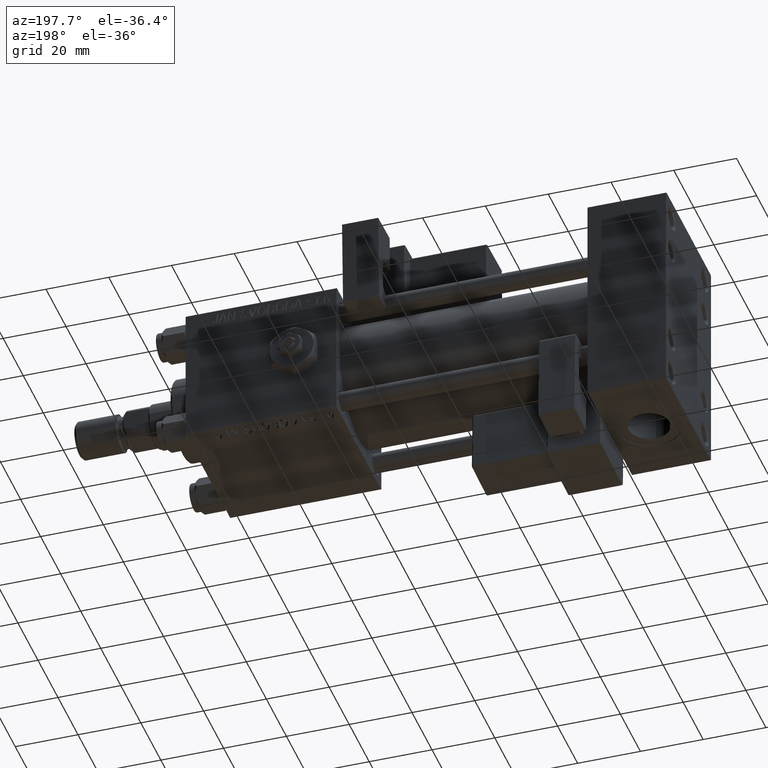
[diagram: clean part render]
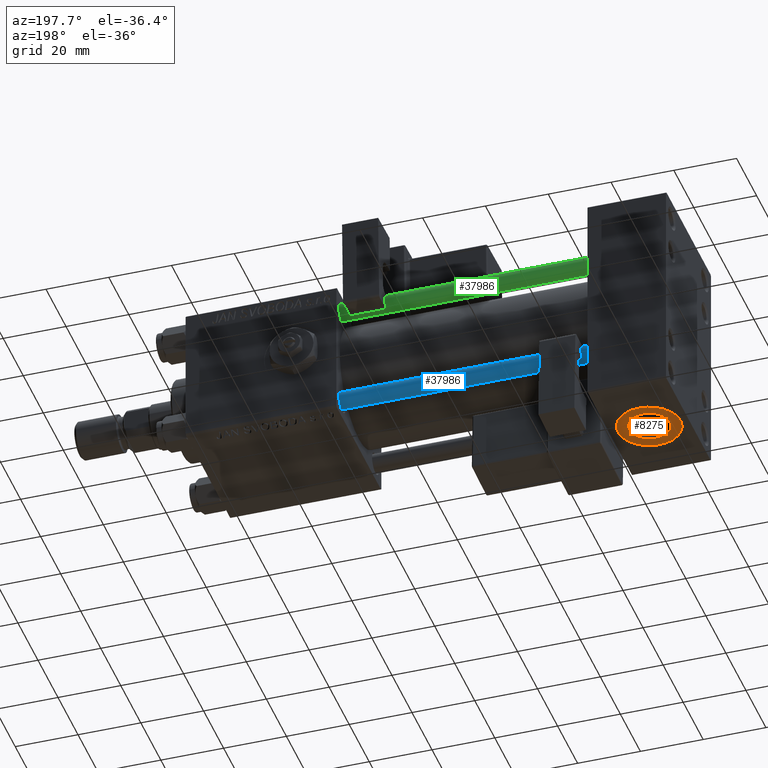
[diagram: same view with three faces highlighted in distinct colors, each labeled with its STEP entity id]
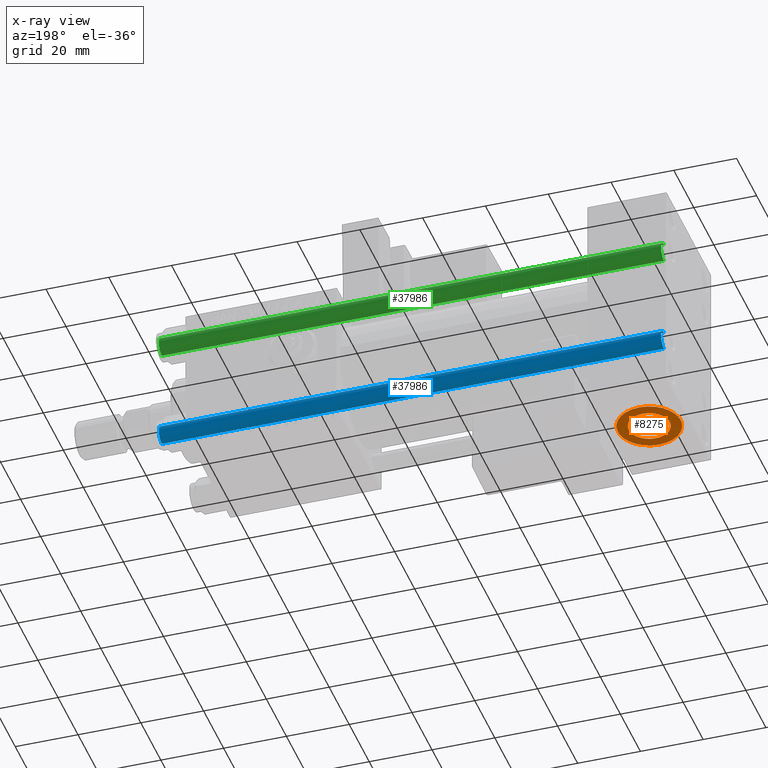
[diagram: x-ray of the same camera — body ghosted, the three highlighted faces saturated]
A machine part, auxiliary view with three faces highlighted in distinct colors.
The next image is the same camera in x-ray (body ghosted, the three faces saturated) — at least one of them is partly hidden behind the body in this view.
Their STEP definitions:

[orange] entity #8275 — the highlighted planar face has unit normal (0, -0, -1).
#928 = DIRECTION ( 'NONE',  ( 0.000000000000000000, 1.000000000000000000, -1.734723475976806848E-16 ) ) ;
#1520 = DIRECTION ( 'NONE',  ( 0.000000000000000000, -1.734723475976806848E-16, -1.000000000000000000 ) ) ;
#3726 = DIRECTION ( 'NONE',  ( 0.000000000000000000, -1.734723475976806848E-16, -1.000000000000000000 ) ) ;
#8275 = ADVANCED_FACE ( 'NONE', ( #21011, #33391 ), #16884, .T. ) ;
#9496 = DIRECTION ( 'NONE',  ( 0.000000000000000000, 1.000000000000000000, 0.000000000000000000 ) ) ;
#9707 = VERTEX_POINT ( 'NONE', #22466 ) ;
#10009 = AXIS2_PLACEMENT_3D ( 'NONE', #28236, #3726, #32618 ) ;
#10683 = ORIENTED_EDGE ( 'NONE', *, *, #17021, .T. ) ;
#12763 = DIRECTION ( 'NONE',  ( 0.000000000000000000, -1.734723475976806848E-16, -1.000000000000000000 ) ) ;
#14124 = CIRCLE ( 'NONE', #34335, 6.580000000000000071 ) ;
#14407 = CARTESIAN_POINT ( 'NONE',  ( 12.50000000000000178, 3.793502239365228285E-15, -34.80000000000000426 ) ) ;
#14433 = EDGE_CURVE ( 'NONE', #16945, #25189, #14124, .T. ) ;
#16884 = PLANE ( 'NONE',  #52733 ) ;
#16945 = VERTEX_POINT ( 'NONE', #17987 ) ;
#17021 = EDGE_CURVE ( 'NONE', #9707, #17053, #26573, .T. ) ;
#17053 = VERTEX_POINT ( 'NONE', #36411 ) ;
#17883 = AXIS2_PLACEMENT_3D ( 'NONE', #24309, #24041, #27901 ) ;
#17987 = CARTESIAN_POINT ( 'NONE',  ( 12.50000000000000178, -6.579999999999997407, -34.80000000000000426 ) ) ;
#20149 = EDGE_CURVE ( 'NONE', #17053, #9707, #46889, .T. ) ;
#20338 = EDGE_CURVE ( 'NONE', #25189, #16945, #53944, .T. ) ;
#20470 = ORIENTED_EDGE ( 'NONE', *, *, #20338, .F. ) ;
#21011 = FACE_BOUND ( 'NONE', #41882, .T. ) ;
#21036 = EDGE_LOOP ( 'NONE', ( #23927, #10683 ) ) ;
#22466 = CARTESIAN_POINT ( 'NONE',  ( 12.50000000000000355, -9.999999999999998224, -34.80000000000000426 ) ) ;
#23927 = ORIENTED_EDGE ( 'NONE', *, *, #20149, .T. ) ;
#24041 = DIRECTION ( 'NONE',  ( 0.000000000000000000, -1.734723475976806848E-16, -1.000000000000000000 ) ) ;
#24309 = CARTESIAN_POINT ( 'NONE',  ( 12.50000000000000178, 3.793502239365228285E-15, -34.80000000000000426 ) ) ;
#25189 = VERTEX_POINT ( 'NONE', #31972 ) ;
#26573 = CIRCLE ( 'NONE', #45903, 10.00000000000000178 ) ;
#27901 = DIRECTION ( 'NONE',  ( 0.000000000000000000, 1.000000000000000000, 0.000000000000000000 ) ) ;
#28236 = CARTESIAN_POINT ( 'NONE',  ( 12.50000000000000178, 3.793502239365228285E-15, -34.80000000000000426 ) ) ;
#31972 = CARTESIAN_POINT ( 'NONE',  ( 12.50000000000000178, 6.580000000000003624, -34.80000000000000426 ) ) ;
#32618 = DIRECTION ( 'NONE',  ( 0.000000000000000000, 1.000000000000000000, 0.000000000000000000 ) ) ;
#33391 = FACE_OUTER_BOUND ( 'NONE', #21036, .T. ) ;
#34335 = AXIS2_PLACEMENT_3D ( 'NONE', #51628, #1520, #9496 ) ;
#36411 = CARTESIAN_POINT ( 'NONE',  ( 12.50000000000000178, 10.00000000000000533, -34.80000000000000426 ) ) ;
#41882 = EDGE_LOOP ( 'NONE', ( #20470, #49678 ) ) ;
#45903 = AXIS2_PLACEMENT_3D ( 'NONE', #14407, #48010, #53222 ) ;
#46889 = CIRCLE ( 'NONE', #10009, 10.00000000000000178 ) ;
#48010 = DIRECTION ( 'NONE',  ( 0.000000000000000000, -1.734723475976806848E-16, -1.000000000000000000 ) ) ;
#49678 = ORIENTED_EDGE ( 'NONE', *, *, #14433, .F. ) ;
#50494 = CARTESIAN_POINT ( 'NONE',  ( 12.50000000000000178, 3.793502239365228285E-15, -34.80000000000000426 ) ) ;
#51628 = CARTESIAN_POINT ( 'NONE',  ( 12.50000000000000178, 3.793502239365228285E-15, -34.80000000000000426 ) ) ;
#52733 = AXIS2_PLACEMENT_3D ( 'NONE', #50494, #12763, #928 ) ;
#53222 = DIRECTION ( 'NONE',  ( 0.000000000000000000, 1.000000000000000000, 0.000000000000000000 ) ) ;
#53944 = CIRCLE ( 'NONE', #17883, 6.580000000000000071 ) ;

[blue] entity #37986 — the highlighted cylindrical surface (edge-blend (fillet) strip) has radius 3 mm, axis along (-1, 0, 0).
#4985 = DIRECTION ( 'NONE',  ( 1.000000000000000000, 0.000000000000000000, 0.000000000000000000 ) ) ;
#5582 = VERTEX_POINT ( 'NONE', #43328 ) ;
#9379 = EDGE_CURVE ( 'NONE', #5582, #28398, #52409, .T. ) ;
#13179 = VECTOR ( 'NONE', #48273, 1000.000000000000000 ) ;
#13778 = CARTESIAN_POINT ( 'NONE',  ( 0.000000000000000000, 0.000000000000000000, 0.5000000000000281997 ) ) ;
#14683 = CARTESIAN_POINT ( 'NONE',  ( 3.000000000000000444, 3.673940397442060361E-16, 161.0000000000000000 ) ) ;
#15091 = CIRCLE ( 'NONE', #19490, 3.000000000000000444 ) ;
#15520 = DIRECTION ( 'NONE',  ( -0.000000000000000000, -0.000000000000000000, -1.000000000000000000 ) ) ;
#16814 = ORIENTED_EDGE ( 'NONE', *, *, #9379, .F. ) ;
#19490 = AXIS2_PLACEMENT_3D ( 'NONE', #27562, #20378, #23710 ) ;
#19966 = DIRECTION ( 'NONE',  ( -0.000000000000000000, -0.000000000000000000, -1.000000000000000000 ) ) ;
#20231 = CARTESIAN_POINT ( 'NONE',  ( -3.000000000000000444, 0.000000000000000000, 161.0000000000000000 ) ) ;
#20378 = DIRECTION ( 'NONE',  ( 0.000000000000000000, 0.000000000000000000, -1.000000000000000000 ) ) ;
#23710 = DIRECTION ( 'NONE',  ( 1.000000000000000000, 0.000000000000000000, 0.000000000000000000 ) ) ;
#24103 = LINE ( 'NONE', #20231, #24638 ) ;
#24638 = VECTOR ( 'NONE', #19966, 1000.000000000000000 ) ;
#25139 = CARTESIAN_POINT ( 'NONE',  ( -3.000000000000000444, 0.000000000000000000, 160.4999999999999716 ) ) ;
#25305 = AXIS2_PLACEMENT_3D ( 'NONE', #13778, #43787, #4985 ) ;
#27562 = CARTESIAN_POINT ( 'NONE',  ( 0.000000000000000000, 0.000000000000000000, 160.4999999999999716 ) ) ;
#28398 = VERTEX_POINT ( 'NONE', #54041 ) ;
#30390 = ORIENTED_EDGE ( 'NONE', *, *, #36003, .T. ) ;
#31762 = CYLINDRICAL_SURFACE ( 'NONE', #44726, 3.000000000000000444 ) ;
#32916 = VERTEX_POINT ( 'NONE', #25139 ) ;
#36003 = EDGE_CURVE ( 'NONE', #38288, #28398, #43797, .T. ) ;
#36442 = FACE_OUTER_BOUND ( 'NONE', #53129, .T. ) ;
#37986 = ADVANCED_FACE ( 'NONE', ( #36442 ), #31762, .T. ) ;
#38219 = ORIENTED_EDGE ( 'NONE', *, *, #47452, .T. ) ;
#38288 = VERTEX_POINT ( 'NONE', #44641 ) ;
#43328 = CARTESIAN_POINT ( 'NONE',  ( 3.000000000000000444, 3.673940397442060361E-16, 160.4999999999999716 ) ) ;
#43787 = DIRECTION ( 'NONE',  ( -0.000000000000000000, -0.000000000000000000, 1.000000000000000000 ) ) ;
#43797 = CIRCLE ( 'NONE', #25305, 3.000000000000000444 ) ;
#44172 = ORIENTED_EDGE ( 'NONE', *, *, #45139, .T. ) ;
#44641 = CARTESIAN_POINT ( 'NONE',  ( -3.000000000000000444, 0.000000000000000000, 0.5000000000000281997 ) ) ;
#44726 = AXIS2_PLACEMENT_3D ( 'NONE', #53248, #15520, #49113 ) ;
#45139 = EDGE_CURVE ( 'NONE', #32916, #38288, #24103, .T. ) ;
#47452 = EDGE_CURVE ( 'NONE', #5582, #32916, #15091, .T. ) ;
#48273 = DIRECTION ( 'NONE',  ( -0.000000000000000000, -0.000000000000000000, -1.000000000000000000 ) ) ;
#49113 = DIRECTION ( 'NONE',  ( -1.000000000000000000, 0.000000000000000000, 0.000000000000000000 ) ) ;
#52409 = LINE ( 'NONE', #14683, #13179 ) ;
#53129 = EDGE_LOOP ( 'NONE', ( #16814, #38219, #44172, #30390 ) ) ;
#53248 = CARTESIAN_POINT ( 'NONE',  ( 0.000000000000000000, 0.000000000000000000, 161.0000000000000000 ) ) ;
#54041 = CARTESIAN_POINT ( 'NONE',  ( 3.000000000000000444, 3.673940397442060361E-16, 0.5000000000000281997 ) ) ;

[green] entity #37986 — the highlighted cylindrical surface (edge-blend (fillet) strip) has radius 3 mm, axis along (1, 0, 0).
#4985 = DIRECTION ( 'NONE',  ( 1.000000000000000000, 0.000000000000000000, 0.000000000000000000 ) ) ;
#5582 = VERTEX_POINT ( 'NONE', #43328 ) ;
#9379 = EDGE_CURVE ( 'NONE', #5582, #28398, #52409, .T. ) ;
#13179 = VECTOR ( 'NONE', #48273, 1000.000000000000000 ) ;
#13778 = CARTESIAN_POINT ( 'NONE',  ( 0.000000000000000000, 0.000000000000000000, 0.5000000000000281997 ) ) ;
#14683 = CARTESIAN_POINT ( 'NONE',  ( 3.000000000000000444, 3.673940397442060361E-16, 161.0000000000000000 ) ) ;
#15091 = CIRCLE ( 'NONE', #19490, 3.000000000000000444 ) ;
#15520 = DIRECTION ( 'NONE',  ( -0.000000000000000000, -0.000000000000000000, -1.000000000000000000 ) ) ;
#16814 = ORIENTED_EDGE ( 'NONE', *, *, #9379, .F. ) ;
#19490 = AXIS2_PLACEMENT_3D ( 'NONE', #27562, #20378, #23710 ) ;
#19966 = DIRECTION ( 'NONE',  ( -0.000000000000000000, -0.000000000000000000, -1.000000000000000000 ) ) ;
#20231 = CARTESIAN_POINT ( 'NONE',  ( -3.000000000000000444, 0.000000000000000000, 161.0000000000000000 ) ) ;
#20378 = DIRECTION ( 'NONE',  ( 0.000000000000000000, 0.000000000000000000, -1.000000000000000000 ) ) ;
#23710 = DIRECTION ( 'NONE',  ( 1.000000000000000000, 0.000000000000000000, 0.000000000000000000 ) ) ;
#24103 = LINE ( 'NONE', #20231, #24638 ) ;
#24638 = VECTOR ( 'NONE', #19966, 1000.000000000000000 ) ;
#25139 = CARTESIAN_POINT ( 'NONE',  ( -3.000000000000000444, 0.000000000000000000, 160.4999999999999716 ) ) ;
#25305 = AXIS2_PLACEMENT_3D ( 'NONE', #13778, #43787, #4985 ) ;
#27562 = CARTESIAN_POINT ( 'NONE',  ( 0.000000000000000000, 0.000000000000000000, 160.4999999999999716 ) ) ;
#28398 = VERTEX_POINT ( 'NONE', #54041 ) ;
#30390 = ORIENTED_EDGE ( 'NONE', *, *, #36003, .T. ) ;
#31762 = CYLINDRICAL_SURFACE ( 'NONE', #44726, 3.000000000000000444 ) ;
#32916 = VERTEX_POINT ( 'NONE', #25139 ) ;
#36003 = EDGE_CURVE ( 'NONE', #38288, #28398, #43797, .T. ) ;
#36442 = FACE_OUTER_BOUND ( 'NONE', #53129, .T. ) ;
#37986 = ADVANCED_FACE ( 'NONE', ( #36442 ), #31762, .T. ) ;
#38219 = ORIENTED_EDGE ( 'NONE', *, *, #47452, .T. ) ;
#38288 = VERTEX_POINT ( 'NONE', #44641 ) ;
#43328 = CARTESIAN_POINT ( 'NONE',  ( 3.000000000000000444, 3.673940397442060361E-16, 160.4999999999999716 ) ) ;
#43787 = DIRECTION ( 'NONE',  ( -0.000000000000000000, -0.000000000000000000, 1.000000000000000000 ) ) ;
#43797 = CIRCLE ( 'NONE', #25305, 3.000000000000000444 ) ;
#44172 = ORIENTED_EDGE ( 'NONE', *, *, #45139, .T. ) ;
#44641 = CARTESIAN_POINT ( 'NONE',  ( -3.000000000000000444, 0.000000000000000000, 0.5000000000000281997 ) ) ;
#44726 = AXIS2_PLACEMENT_3D ( 'NONE', #53248, #15520, #49113 ) ;
#45139 = EDGE_CURVE ( 'NONE', #32916, #38288, #24103, .T. ) ;
#47452 = EDGE_CURVE ( 'NONE', #5582, #32916, #15091, .T. ) ;
#48273 = DIRECTION ( 'NONE',  ( -0.000000000000000000, -0.000000000000000000, -1.000000000000000000 ) ) ;
#49113 = DIRECTION ( 'NONE',  ( -1.000000000000000000, 0.000000000000000000, 0.000000000000000000 ) ) ;
#52409 = LINE ( 'NONE', #14683, #13179 ) ;
#53129 = EDGE_LOOP ( 'NONE', ( #16814, #38219, #44172, #30390 ) ) ;
#53248 = CARTESIAN_POINT ( 'NONE',  ( 0.000000000000000000, 0.000000000000000000, 161.0000000000000000 ) ) ;
#54041 = CARTESIAN_POINT ( 'NONE',  ( 3.000000000000000444, 3.673940397442060361E-16, 0.5000000000000281997 ) ) ;